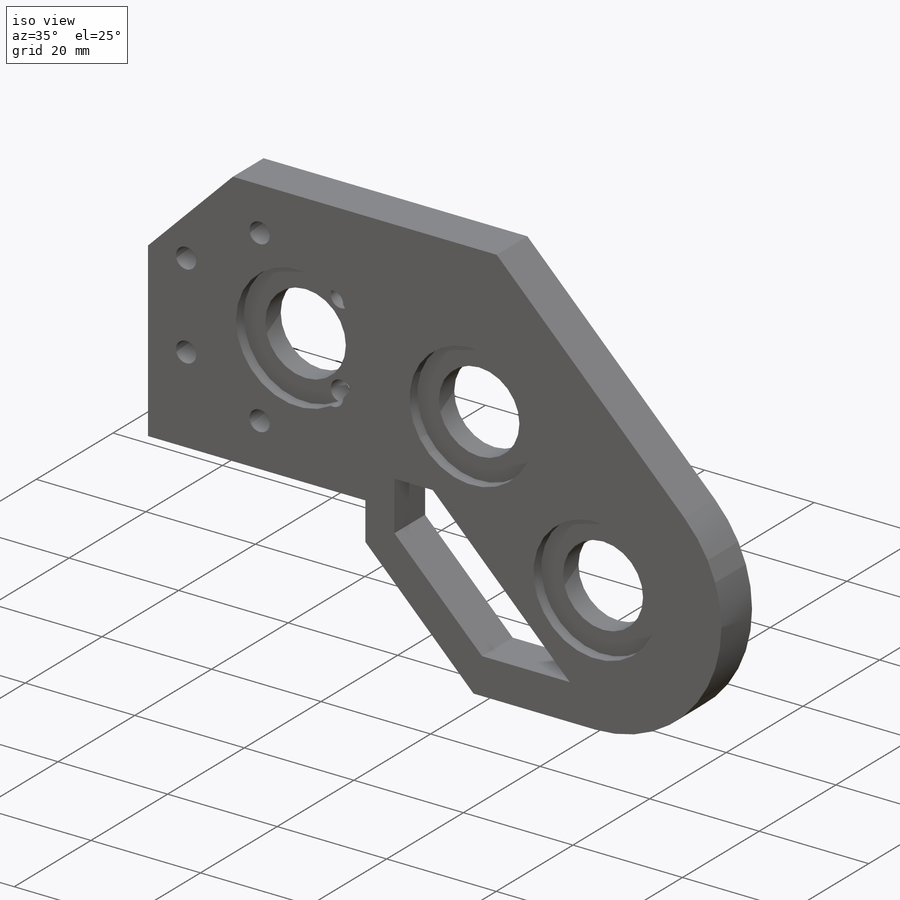
[diagram: iso view]
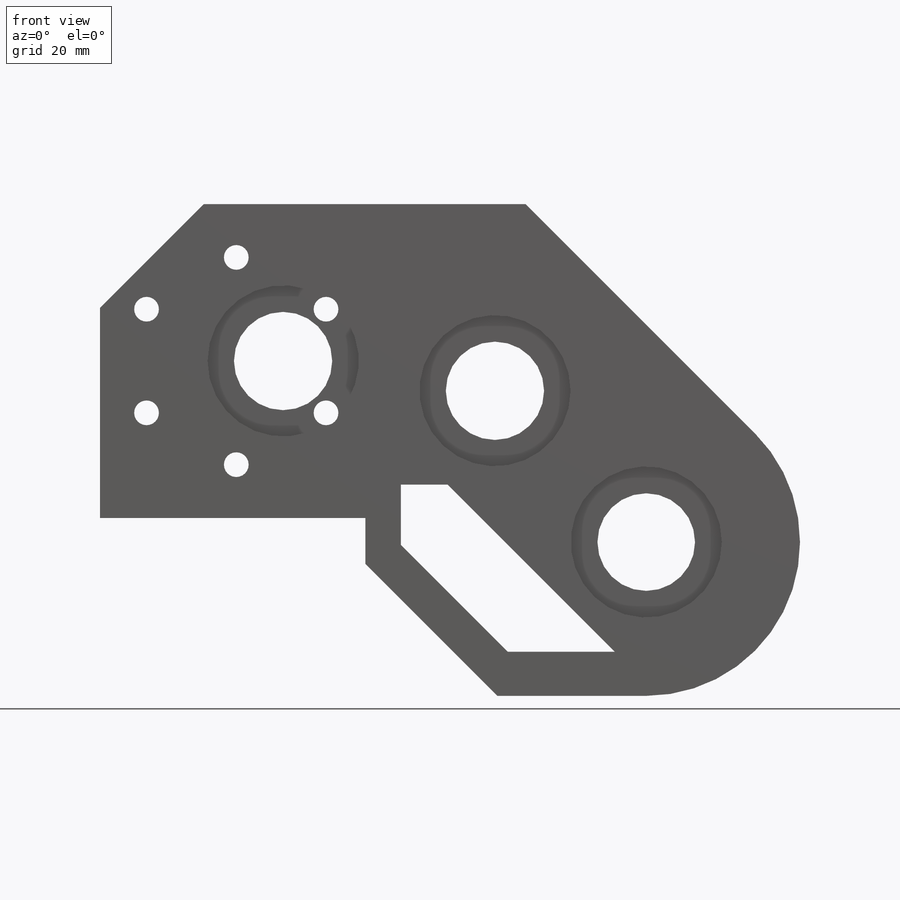
[diagram: front view]
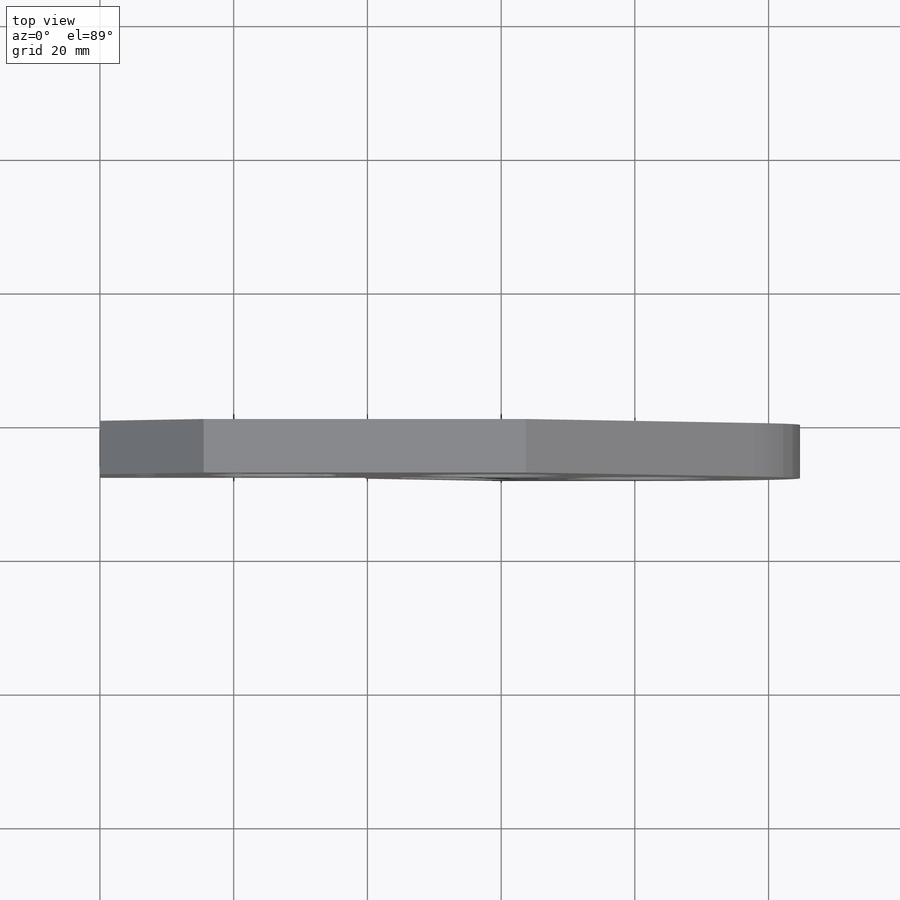
[diagram: top view]
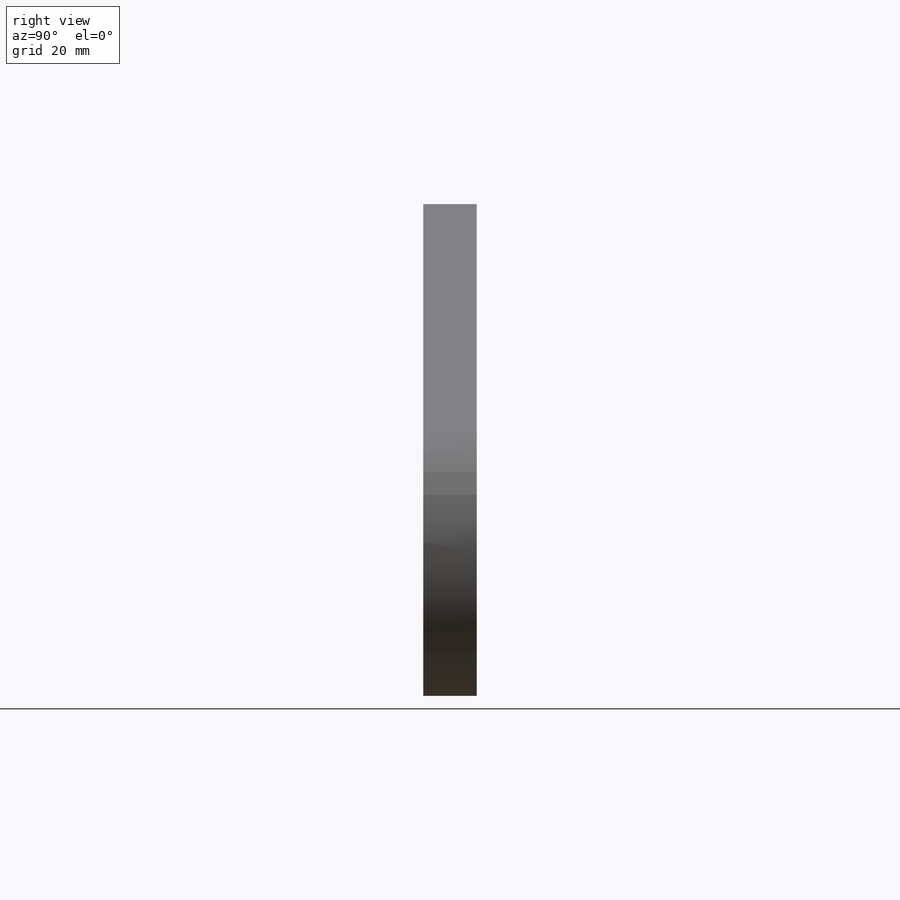
[diagram: right view]
SOLIDWORKS PART (.sldprt)
format: sldprt  version: not decoded by parser v0  size: 282,112 bytes
history: native  units: mm
features: sketch x6, cut_extrude x5, plane x3, material x1, extrude x1 (+10 scaffold rows collapsed)
feature tree (26):
  scaffold x10  (default folders/planes/origin — collapsed)
  material  "Material <não especificado>"
  plane  "Plano frontal"
  plane  "Plano superior"
  plane  "Plano direito"
  sketch  "Model"
  sketch  "Esboço2"
  sketch  "Esboço3"
  extrude  "Ressalto-extrusão1"  Depth=8mm
  sketch  "Esboço4"
  cut_extrude  "Corte-extrusão1"  Depth=2mm
  cut_extrude  "Corte-extrusão2"  Depth=2mm
  cut_extrude  "Corte-extrusão4"  Depth=2mm
  sketch  "Esboço6"  dims[D1=~2.583105mm]
  cut_extrude  "Corte-extrusão5"  Depth=10mm
  sketch  "Esboço7"  dims[D1=~2.847686mm]
  cut_extrude  "supoerte_placa"  [1 undecoded]
decode coverage: 7 of 12 modeling features carry decoded parameters
note: ~ marks probable driven/reference dimensions
note: 1 parameter value undecoded
note: suppression state not decoded; provenance and decode notes live in map.json
